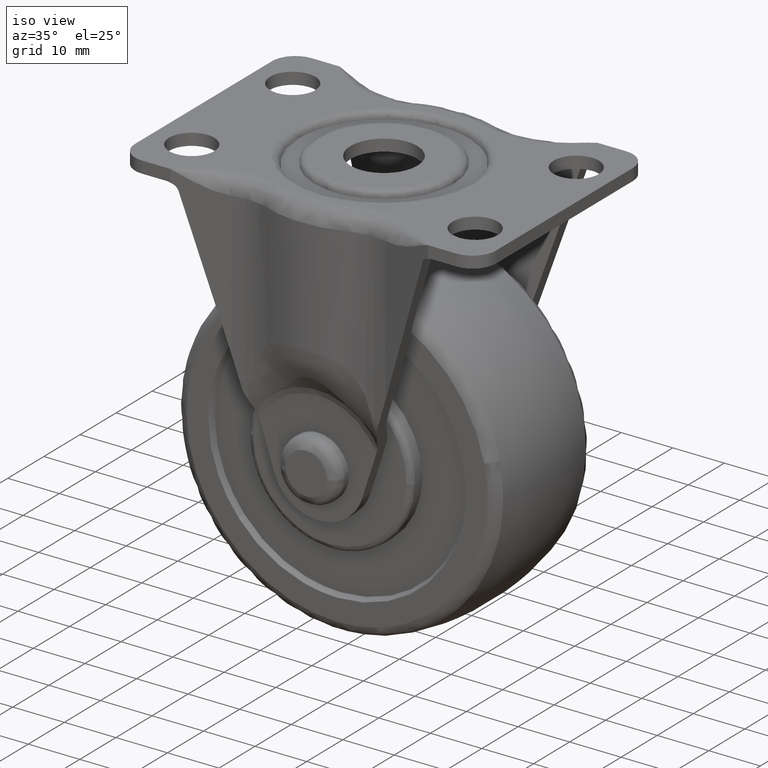
[diagram: clean part render]
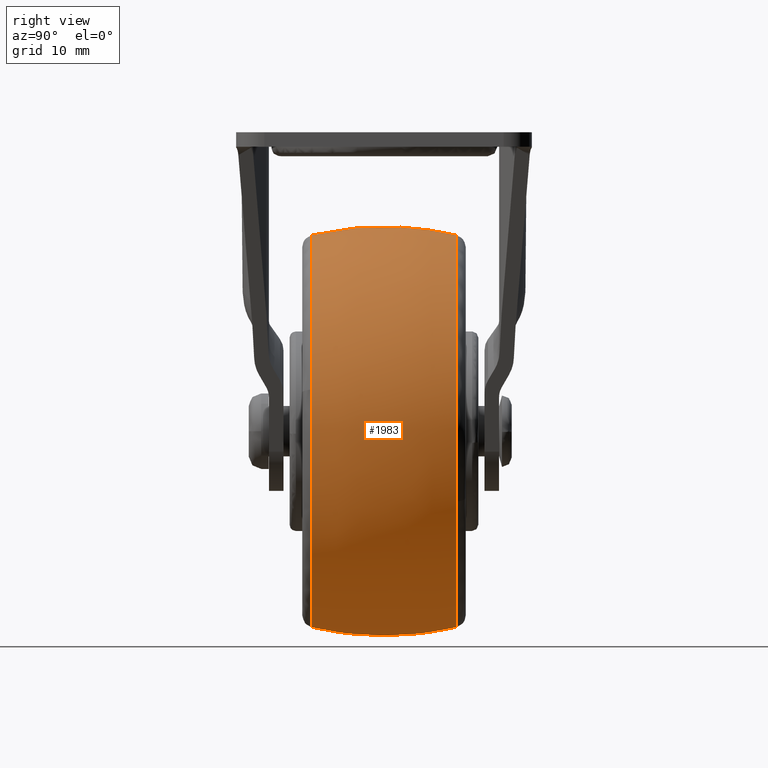
[diagram: tour spotlight — one face highlighted and labeled with its STEP entity id]
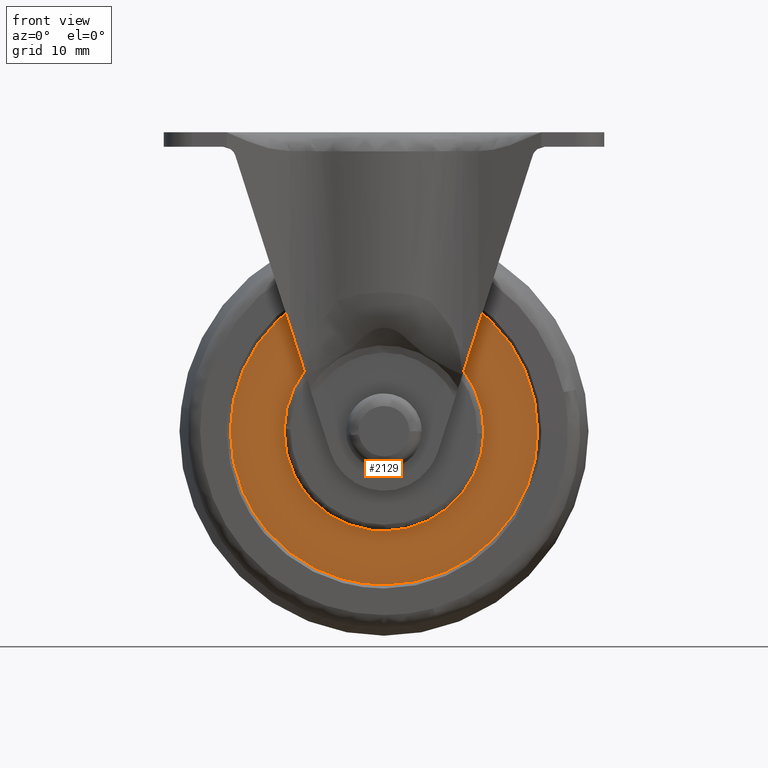
[diagram: tour spotlight — one face highlighted and labeled with its STEP entity id]
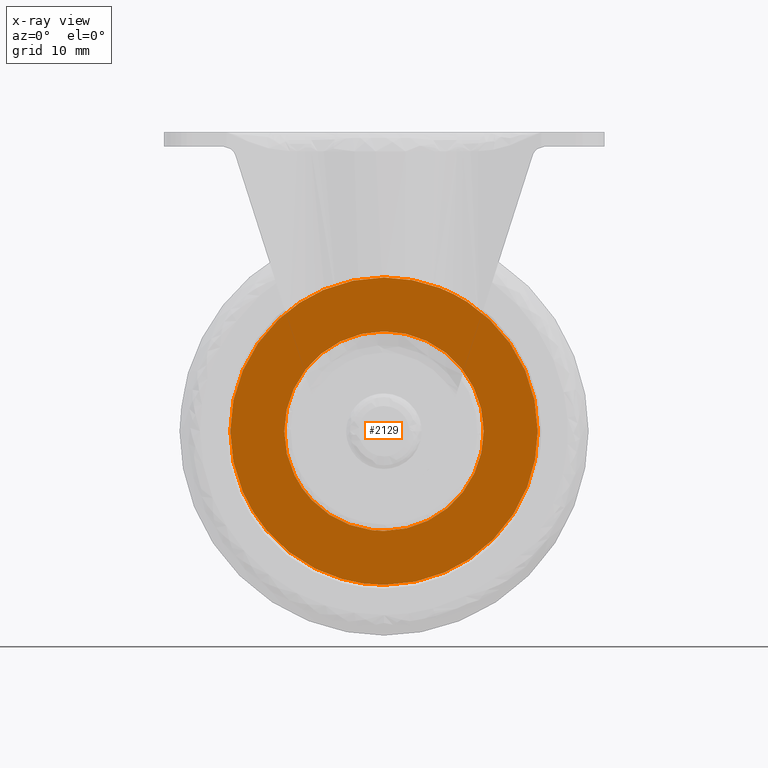
[diagram: x-ray of the same camera — body ghosted, this tour face saturated]
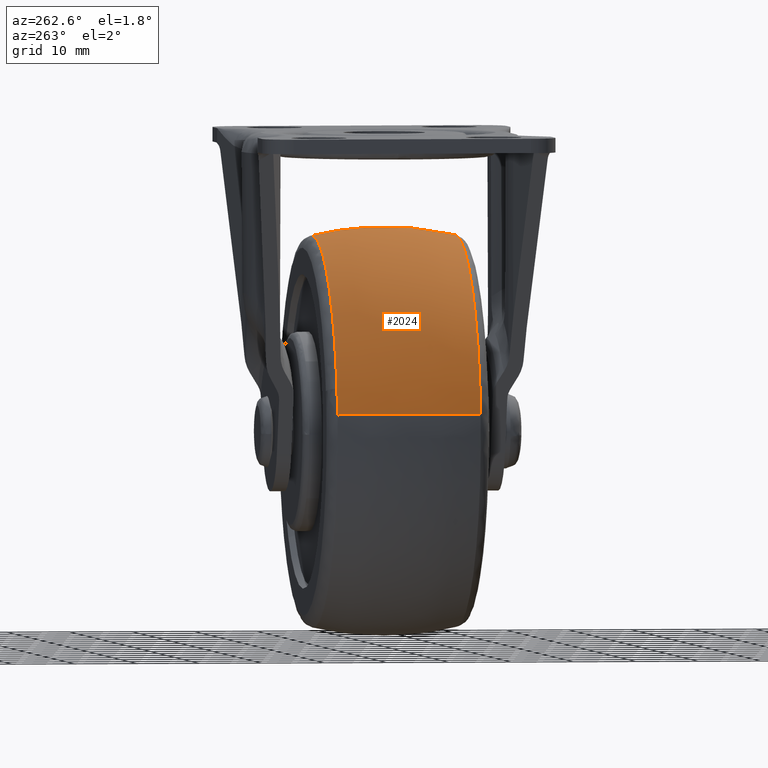
[diagram: tour spotlight — one face highlighted and labeled with its STEP entity id]
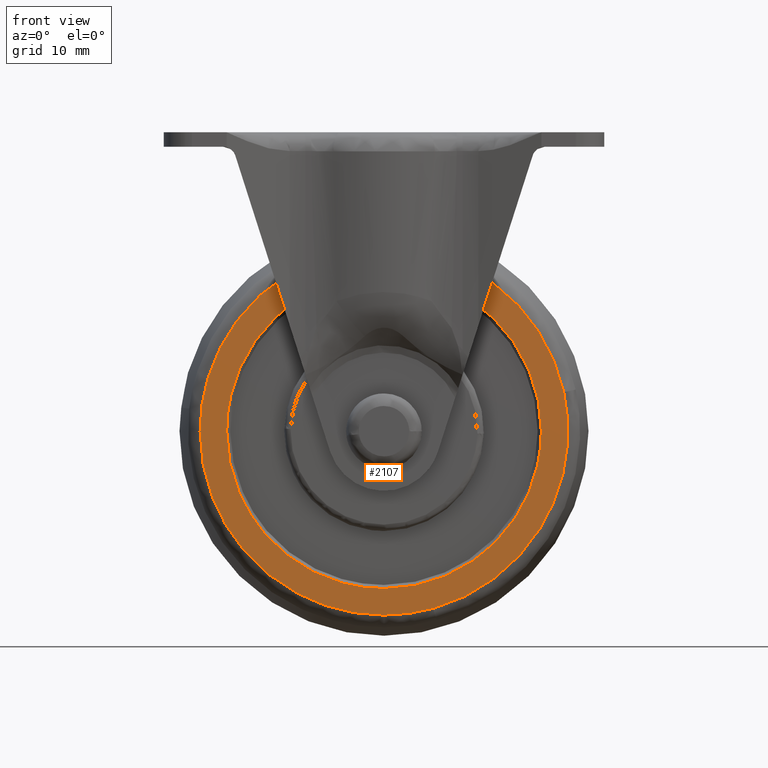
[diagram: tour spotlight — one face highlighted and labeled with its STEP entity id]
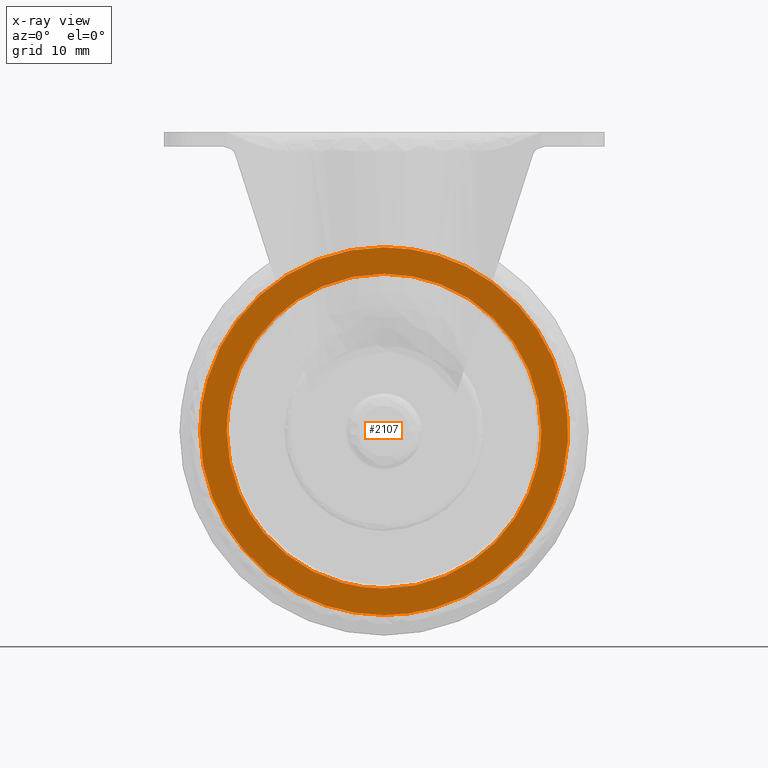
[diagram: x-ray of the same camera — body ghosted, this tour face saturated]
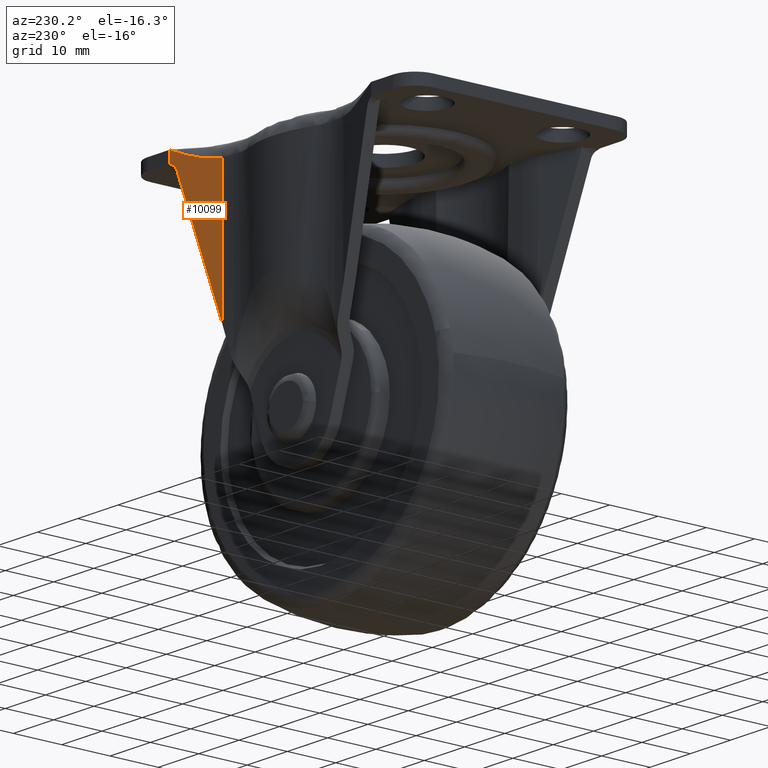
[diagram: tour spotlight — one face highlighted and labeled with its STEP entity id]
A machine part: a face-by-face anatomy tour. The part has 174 B-rep faces; the first image is the clean iso view, then the 5 largest visible faces are spotlighted one at a time (largest first), each with its STEP entity span.

Face 1 — right view, entity #1983. In plain terms, the highlighted face is a freeform B-spline surface patch.
Definition (entity closure, byte-faithful):
#1364=CARTESIAN_POINT('',(0.0,11.458332937572701,31.169360035773391));
#1365=VERTEX_POINT('',#1364);
#1380=CARTESIAN_POINT('',(29.093172507093531,11.458333520081990,-11.185538065268309));
#1381=VERTEX_POINT('',#1380);
#1382=CARTESIAN_POINT('',(29.093172507093531,11.458333520081990,-11.185538065268309));
#1383=CARTESIAN_POINT('',(29.685962858441250,11.458333542868081,-9.643986918233292));
#1384=CARTESIAN_POINT('',(30.648008929683531,11.458333583259670,-6.390727772732680));
#1385=CARTESIAN_POINT('',(31.326247697283652,11.458333625853850,-0.987566777631188));
#1386=CARTESIAN_POINT('',(31.034218535297441,11.458333641361250,4.141022359017217));
#1387=CARTESIAN_POINT('',(29.935316903379309,11.458333634445740,9.063814271240322));
#1388=CARTESIAN_POINT('',(28.448878794966340,11.458333612603781,12.972202334880871));
#1389=CARTESIAN_POINT('',(26.259647500496730,11.458333572507570,16.982466567898872));
#1390=CARTESIAN_POINT('',(23.150479300303552,11.458333508678020,21.161500459767218));
#1391=CARTESIAN_POINT('',(18.701964735421310,11.458333408574729,25.207521002987150));
#1392=CARTESIAN_POINT('',(13.464612984302789,11.458333283142370,28.301743545933359));
#1393=CARTESIAN_POINT('',(7.313792023346034,11.458333129590450,30.560834445576649));
#1394=CARTESIAN_POINT('',(2.752785124504729,11.458333010889300,31.170354142161610));
#1395=CARTESIAN_POINT('',(0.0,11.458332937572701,31.169360035773391));
#1396=B_SPLINE_CURVE_WITH_KNOTS('',3,(#1382,#1383,#1384,#1385,#1386,#1387,#1388,#1389,#1390,#1391,#1392,#1393,#1394,#1395),.UNSPECIFIED.,.F.,.U.,(4,1,1,1,1,1,1,1,1,1,1,4),(0.000000229770372,4.954798130012726,10.145535638811371,16.280121506511509,20.291189685613620,25.246042157817740,28.785175737634589,33.975849854384990,40.818233150470718,46.716847777052863,52.143545874056322,60.401565906026399),.UNSPECIFIED.);
#1397=EDGE_CURVE('',#1381,#1365,#1396,.T.);
#1451=CARTESIAN_POINT('',(0.0,11.458333692308800,-31.169359858084249));
#1452=VERTEX_POINT('',#1451);
#1453=CARTESIAN_POINT('',(0.0,11.458333692308800,-31.169359858084249));
#1454=CARTESIAN_POINT('',(1.661031798035533,11.458333692309260,-31.169413621249632));
#1455=CARTESIAN_POINT('',(5.569420188486874,11.458333689612139,-30.856460728220949));
#1456=CARTESIAN_POINT('',(10.687097814335580,11.458333677500949,-29.451174434579151));
#1457=CARTESIAN_POINT('',(14.935417559887821,11.458333660169700,-27.440201437893151));
#1458=CARTESIAN_POINT('',(18.252155230143490,11.458333642267251,-25.362930213383329));
#1459=CARTESIAN_POINT('',(21.522485098331028,11.458333619391841,-22.708665161897581));
#1460=CARTESIAN_POINT('',(24.359890721083069,11.458333592530151,-19.591840861025350));
#1461=CARTESIAN_POINT('',(27.038157354574061,11.458333559282829,-15.734090337861710));
#1462=CARTESIAN_POINT('',(28.392092794136762,11.458333535802540,-13.009624046275890));
#1463=CARTESIAN_POINT('',(29.093172507093531,11.458333520081990,-11.185538065268309));
#1464=B_SPLINE_CURVE_WITH_KNOTS('',3,(#1453,#1454,#1455,#1456,#1457,#1458,#1459,#1460,#1461,#1462,#1463),.UNSPECIFIED.,.F.,.U.,(4,1,1,1,1,1,1,1,4),(0.000000079452498,4.983141864944074,11.725047662135950,15.828861701065950,19.053161306219049,23.450059206301219,28.433239649027641,31.657652201441490,37.520148068174493),.UNSPECIFIED.);
#1465=EDGE_CURVE('',#1452,#1381,#1464,.T.);
#1467=CARTESIAN_POINT('',(-30.960887336973880,11.458347589749600,3.598922797563327));
#1468=VERTEX_POINT('',#1467);
#1469=CARTESIAN_POINT('',(-30.960887336973880,11.458347589749600,3.598922797563327));
#1470=CARTESIAN_POINT('',(-31.142741001151819,11.458347277240129,2.035183048548975));
#1471=CARTESIAN_POINT('',(-31.265961117802512,11.458346613614840,-1.051318203245586));
#1472=CARTESIAN_POINT('',(-30.687991478750980,11.458345312479420,-6.373046937045799));
#1473=CARTESIAN_POINT('',(-29.174720886936210,11.458343879317420,-11.454119380355131));
#1474=CARTESIAN_POINT('',(-26.809491668857628,11.458342373426190,-16.102764745734611));
#1475=CARTESIAN_POINT('',(-24.167619646392509,11.458341010284281,-19.864742343433239));
#1476=CARTESIAN_POINT('',(-21.044121332157260,11.458339658259190,-23.147969820337060));
#1477=CARTESIAN_POINT('',(-17.851323388258550,11.458338469642531,-25.636496556519390));
#1478=CARTESIAN_POINT('',(-14.632191371318919,11.458337393728470,-27.596030880639489));
#1479=CARTESIAN_POINT('',(-11.397085063313099,11.458336416523469,-29.098569620806071));
#1480=CARTESIAN_POINT('',(-6.433747461729930,11.458335077165660,-30.686614175202671));
#1481=CARTESIAN_POINT('',(-2.601094274496044,11.458334208502970,-31.170160178689951));
#1482=CARTESIAN_POINT('',(0.0,11.458333692308800,-31.169359858084249));
#1483=B_SPLINE_CURVE_WITH_KNOTS('',3,(#1469,#1470,#1471,#1472,#1473,#1474,#1475,#1476,#1477,#1478,#1479,#1480,#1481,#1482),.UNSPECIFIED.,.F.,.U.,(4,1,1,1,1,1,1,1,1,1,1,4),(0.000000182009437,4.722832643027623,9.240421908535112,16.016758111931519,20.534348796644078,24.846540083464529,29.774712067166170,34.086894471246460,36.961707157563822,41.068589599455088,44.764771290116030,52.567777121467188),.UNSPECIFIED.);
#1484=EDGE_CURVE('',#1468,#1452,#1483,.T.);
#1538=CARTESIAN_POINT('',(8.339410921737478,-11.458334047254681,-30.033034807135770));
#1539=VERTEX_POINT('',#1538);
#1540=CARTESIAN_POINT('',(30.460826968260040,-11.458332161546060,6.608100880899132));
#1541=VERTEX_POINT('',#1540);
#1542=CARTESIAN_POINT('',(8.339410921737478,-11.458334047254681,-30.033034807135770));
#1543=CARTESIAN_POINT('',(10.055931200155589,-11.458333983571990,-29.556538420101411));
#1544=CARTESIAN_POINT('',(13.638034962927710,-11.458333838800950,-28.222066191345789));
#1545=CARTESIAN_POINT('',(18.455912151728270,-11.458333605951751,-25.335114075955840));
#1546=CARTESIAN_POINT('',(22.754770088023221,-11.458333355639100,-21.540649585722100));
#1547=CARTESIAN_POINT('',(25.973540455189120,-11.458333125631860,-17.479956553296681));
#1548=CARTESIAN_POINT('',(28.428519441458299,-11.458332904259230,-13.067041355823060));
#1549=CARTESIAN_POINT('',(30.000222700830111,-11.458332714002291,-8.851975920192663));
#1550=CARTESIAN_POINT('',(31.075820552110851,-11.458332510111120,-3.857026446332759));
#1551=CARTESIAN_POINT('',(31.314147526456150,-11.458332324842250,1.261749992596616));
#1552=CARTESIAN_POINT('',(30.812489237837479,-11.458332208504110,4.987269294445119));
#1553=CARTESIAN_POINT('',(30.460826968260040,-11.458332161546060,6.608100880899132));
#1554=B_SPLINE_CURVE_WITH_KNOTS('',3,(#1542,#1543,#1544,#1545,#1546,#1547,#1548,#1549,#1550,#1551,#1552,#1553),.UNSPECIFIED.,.F.,.U.,(4,1,1,1,1,1,1,1,1,4),(0.000000131400249,5.344285666791699,11.425718842227640,16.770039375387110,22.482914695876651,26.905659390154401,31.881418622789109,35.935733726845463,42.201499036308370,47.177161544930613),.UNSPECIFIED.);
#1555=EDGE_CURVE('',#1539,#1541,#1554,.T.);
#1638=CARTESIAN_POINT('',(0.0,-11.458333336538320,-31.169359396949449));
#1639=VERTEX_POINT('',#1638);
#1640=CARTESIAN_POINT('',(0.0,-11.458333336538320,-31.169359396949449));
#1641=CARTESIAN_POINT('',(2.814130440411359,-11.458333336275020,-31.169780421244781));
#1642=CARTESIAN_POINT('',(5.628030381459679,-11.458333575890130,-30.786673086169898));
#1643=CARTESIAN_POINT('',(8.339410921737478,-11.458334047254681,-30.033034807135770));
#1644=B_SPLINE_CURVE_WITH_KNOTS('',3,(#1640,#1641,#1642,#1643),.UNSPECIFIED.,.F.,.U.,(4,4),(5.184404E-009,8.442279241378907),.UNSPECIFIED.);
#1645=EDGE_CURVE('',#1639,#1539,#1644,.T.);
#1706=CARTESIAN_POINT('',(0.0,-11.458331577675491,31.169359947265882));
#1707=VERTEX_POINT('',#1706);
#1708=CARTESIAN_POINT('',(30.460826968260040,-11.458332161546060,6.608100880899132));
#1709=CARTESIAN_POINT('',(29.994077019127001,-11.458332110358789,8.761358206001102));
#1710=CARTESIAN_POINT('',(28.983994526200320,-11.458332037861600,11.811045564899841));
#1711=CARTESIAN_POINT('',(26.821803752677251,-11.458331937525100,16.031827378413109));
#1712=CARTESIAN_POINT('',(24.220268085106358,-11.458331846202290,19.873438795778920));
#1713=CARTESIAN_POINT('',(21.059190856362239,-11.458331768752201,23.131474364837121));
#1714=CARTESIAN_POINT('',(17.305972540357860,-11.458331699883770,26.028514949284091));
#1715=CARTESIAN_POINT('',(13.776852919717721,-11.458331650711941,28.096984639413449));
#1716=CARTESIAN_POINT('',(9.258291300339725,-11.458331608257090,29.882908772690950));
#1717=CARTESIAN_POINT('',(4.736932100573088,-11.458331583322231,30.931819918748470));
#1718=CARTESIAN_POINT('',(1.542253208388154,-11.458331577673810,31.169434688912681));
#1719=CARTESIAN_POINT('',(0.0,-11.458331577675491,31.169359947265882));
#1720=B_SPLINE_CURVE_WITH_KNOTS('',3,(#1708,#1709,#1710,#1711,#1712,#1713,#1714,#1715,#1716,#1717,#1718,#1719),.UNSPECIFIED.,.F.,.U.,(4,1,1,1,1,1,1,1,1,4),(0.000000044448946,6.609699393149732,9.584108145195962,14.210926048051549,20.490188607394352,23.134003592904911,28.421823003075030,32.718176574287099,37.675504615882801,42.302282196595151),.UNSPECIFIED.);
#1721=EDGE_CURVE('',#1541,#1707,#1720,.T.);
#1723=CARTESIAN_POINT('',(-30.960887788978059,-11.458344489675630,3.598922870577073));
#1724=VERTEX_POINT('',#1723);
#1739=CARTESIAN_POINT('',(-30.960887788978059,-11.458344489675630,3.598922870577073));
#1740=CARTESIAN_POINT('',(-31.269936326834490,-11.458344064510730,0.947324563657963));
#1741=CARTESIAN_POINT('',(-31.221211875571878,-11.458343390074409,-2.778942572616157));
#1742=CARTESIAN_POINT('',(-30.169367211212609,-11.458342247330680,-8.229470593203578));
#1743=CARTESIAN_POINT('',(-28.682001005651561,-11.458341230794570,-12.586751572245170));
#1744=CARTESIAN_POINT('',(-25.947875620444140,-11.458339900286720,-17.588699651725101));
#1745=CARTESIAN_POINT('',(-22.249134390506001,-11.458338500482320,-22.118986456722979));
#1746=CARTESIAN_POINT('',(-18.319663899241029,-11.458337296091630,-25.351576324543650));
#1747=CARTESIAN_POINT('',(-14.632166166694470,-11.458336307049571,-27.595983671851702));
#1748=CARTESIAN_POINT('',(-10.837224305238809,-11.458335387051720,-29.358800862994819));
#1749=CARTESIAN_POINT('',(-5.817960929521735,-11.458334329188039,-30.801948998408641));
#1750=CARTESIAN_POINT('',(-1.984992908647913,-11.458333652743629,-31.169600554861631));
#1751=CARTESIAN_POINT('',(0.0,-11.458333336538320,-31.169359396949449));
#1752=B_SPLINE_CURVE_WITH_KNOTS('',3,(#1739,#1740,#1741,#1742,#1743,#1744,#1745,#1746,#1747,#1748,#1749,#1750,#1751),.UNSPECIFIED.,.F.,.U.,(4,1,1,1,1,1,1,1,1,1,4),(0.000000182040822,8.008330706845918,11.088510386367300,16.632802529028091,21.766349570607581,28.131895421878710,34.086894370772590,36.961707048612929,41.068589478394401,46.612839564652717,52.567776966501640),.UNSPECIFIED.);
#1753=EDGE_CURVE('',#1724,#1639,#1752,.T.);
#1903=CARTESIAN_POINT('',(-30.676606947715467,-12.612271061733603,3.565900045393533));
#1904=CARTESIAN_POINT('',(-32.282628353075232,-6.409770975767172,3.752586656857315));
#1905=CARTESIAN_POINT('',(-32.282628353075225,-3.214592E-015,3.752586656857316));
#1906=CARTESIAN_POINT('',(-32.282628353075225,6.409772813824291,3.752586656857316));
#1907=CARTESIAN_POINT('',(-30.676606041526728,12.612274561459639,3.565899940056639));
#1908=CARTESIAN_POINT('',(-30.883164620199832,-12.612271061733605,1.788932533636364));
#1909=CARTESIAN_POINT('',(-32.500000000000000,-6.409770975767171,1.882589043519000));
#1910=CARTESIAN_POINT('',(-32.500000000000000,-3.214592E-015,1.882589043519000));
#1911=CARTESIAN_POINT('',(-32.500000000000000,6.409772813824286,1.882589043519000));
#1912=CARTESIAN_POINT('',(-30.883163707909368,12.612274561459639,1.788932480791193));
#1913=CARTESIAN_POINT('',(-30.883164620199835,-12.612271061733606,0.0));
#1914=CARTESIAN_POINT('',(-32.499999999999993,-6.409770975767171,0.0));
#1915=CARTESIAN_POINT('',(-32.500000000000000,-3.214592E-015,0.0));
#1916=CARTESIAN_POINT('',(-32.500000000000000,6.409772813824289,0.0));
#1917=CARTESIAN_POINT('',(-30.883163707909368,12.612274561459637,0.0));
#1918=CARTESIAN_POINT('',(-30.883164620199835,-12.612271061733606,-30.883164620199835));
#1919=CARTESIAN_POINT('',(-32.500000000000000,-6.409770975767172,-32.500000000000000));
#1920=CARTESIAN_POINT('',(-32.500000000000007,-3.214592E-015,-32.500000000000007));
#1921=CARTESIAN_POINT('',(-32.499999999999993,6.409772813824290,-32.499999999999993));
#1922=CARTESIAN_POINT('',(-30.883163707909372,12.612274561459643,-30.883163707909372));
#1923=CARTESIAN_POINT('',(0.0,-12.612271061733606,-30.883164620199835));
#1924=CARTESIAN_POINT('',(0.0,-6.409770975767171,-32.499999999999993));
#1925=CARTESIAN_POINT('',(0.0,-3.214592E-015,-32.500000000000000));
#1926=CARTESIAN_POINT('',(0.0,6.409772813824289,-32.500000000000000));
#1927=CARTESIAN_POINT('',(0.0,12.612274561459637,-30.883163707909368));
#1928=CARTESIAN_POINT('',(30.883164620199835,-12.612271061733606,-30.883164620199835));
#1929=CARTESIAN_POINT('',(32.500000000000000,-6.409770975767172,-32.500000000000000));
#1930=CARTESIAN_POINT('',(32.500000000000007,-3.214592E-015,-32.500000000000007));
#1931=CARTESIAN_POINT('',(32.499999999999993,6.409772813824290,-32.499999999999993));
#1932=CARTESIAN_POINT('',(30.883163707909372,12.612274561459643,-30.883163707909372));
#1933=CARTESIAN_POINT('',(30.883164620199835,-12.612271061733606,0.0));
#1934=CARTESIAN_POINT('',(32.499999999999993,-6.409770975767171,0.0));
#1935=CARTESIAN_POINT('',(32.500000000000000,-3.214592E-015,0.0));
#1936=CARTESIAN_POINT('',(32.500000000000000,6.409772813824289,0.0));
#1937=CARTESIAN_POINT('',(30.883163707909368,12.612274561459637,0.0));
#1938=CARTESIAN_POINT('',(30.883164620199835,-12.612271061733606,30.883164620199835));
#1939=CARTESIAN_POINT('',(32.500000000000000,-6.409770975767172,32.500000000000000));
#1940=CARTESIAN_POINT('',(32.500000000000007,-3.214592E-015,32.500000000000007));
#1941=CARTESIAN_POINT('',(32.499999999999993,6.409772813824290,32.499999999999993));
#1942=CARTESIAN_POINT('',(30.883163707909372,12.612274561459643,30.883163707909372));
#1943=CARTESIAN_POINT('',(0.0,-12.612271061733606,30.883164620199835));
#1944=CARTESIAN_POINT('',(0.0,-6.409770975767171,32.499999999999993));
#1945=CARTESIAN_POINT('',(0.0,-3.214592E-015,32.500000000000000));
#1946=CARTESIAN_POINT('',(0.0,6.409772813824289,32.500000000000000));
#1947=CARTESIAN_POINT('',(0.0,12.612274561459637,30.883163707909368));
#1955=(BOUNDED_SURFACE()B_SPLINE_SURFACE(2,2,((#1903,#1908,#1913,#1918,#1923,#1928,#1933,#1938,#1943),(#1904,#1909,#1914,#1919,#1924,#1929,#1934,#1939,#1944),(#1905,#1910,#1915,#1920,#1925,#1930,#1935,#1940,#1945),(#1906,#1911,#1916,#1921,#1926,#1931,#1936,#1941,#1946),(#1907,#1912,#1917,#1922,#1927,#1932,#1937,#1942,#1947)),.UNSPECIFIED.,.F.,.F.,.U.)B_SPLINE_SURFACE_WITH_KNOTS((3,2,3),(3,2,2,2,3),(0.0,13.118280322433749,26.236564261545031),(0.0,4.307820149998688,58.155583258501053,112.003346367003400,165.851109475505810),.UNSPECIFIED.)GEOMETRIC_REPRESENTATION_ITEM()RATIONAL_B_SPLINE_SURFACE(((0.899026014747760,0.917518297169104,0.939532918224492,0.664350097624524,0.939532918224492,0.664350097624524,0.939532918224492,0.664350097624524,0.939532918224492),(0.919976327677525,0.938899542126594,0.961427177480317,0.679831676813375,0.961427177480317,0.679831676813375,0.961427177480317,0.679831676813375,0.961427177480317),(0.956886126402807,0.976568547383107,1.0,0.707106781186548,1.0,0.707106781186548,1.0,0.707106781186548,1.0),(0.919976317501585,0.938899531741342,0.961427166845885,0.679831669293696,0.961427166845885,0.679831669293696,0.961427166845885,0.679831669293696,0.961427166845885),(0.899026003195862,0.917518285379592,0.939532906152107,0.664350089088059,0.939532906152107,0.664350089088059,0.939532906152107,0.664350089088059,0.939532906152107)))REPRESENTATION_ITEM('')SURFACE());
#1956=ORIENTED_EDGE('',*,*,#1484,.T.);
#1957=ORIENTED_EDGE('',*,*,#1465,.T.);
#1958=ORIENTED_EDGE('',*,*,#1397,.T.);
#1959=CARTESIAN_POINT('',(0.0,-11.458331577675491,31.169359947265882));
#1960=CARTESIAN_POINT('',(0.0,-8.996675269607593,31.749065272665650));
#1961=CARTESIAN_POINT('',(0.0,-4.104516942717155,32.515017539026658));
#1962=CARTESIAN_POINT('',(0.0,3.622807716456403,32.570907540381697));
#1963=CARTESIAN_POINT('',(0.0,8.762238175156128,31.804325753622368));
#1964=CARTESIAN_POINT('',(0.0,11.458332937572701,31.169360035773391));
#1965=B_SPLINE_CURVE_WITH_KNOTS('',3,(#1959,#1960,#1961,#1962,#1963,#1964),.UNSPECIFIED.,.F.,.U.,(4,1,1,4),(0.000000010432490,7.586972723426124,14.812646244554241,23.122196095847869),.UNSPECIFIED.);
#1966=EDGE_CURVE('',#1707,#1365,#1965,.T.);
#1967=ORIENTED_EDGE('',*,*,#1966,.F.);
#1968=ORIENTED_EDGE('',*,*,#1721,.F.);
#1969=ORIENTED_EDGE('',*,*,#1555,.F.);
#1970=ORIENTED_EDGE('',*,*,#1645,.F.);
#1971=ORIENTED_EDGE('',*,*,#1753,.F.);
#1972=CARTESIAN_POINT('',(-30.960887788978059,-11.458344489675630,3.598922870577073));
#1973=CARTESIAN_POINT('',(-31.536680493463120,-8.996683135848322,3.665853988763190));
#1974=CARTESIAN_POINT('',(-32.334776727024192,-3.865876428712874,3.758626043761824));
#1975=CARTESIAN_POINT('',(-32.334728181743422,3.865877136825594,3.758620393869109));
#1976=CARTESIAN_POINT('',(-31.536703855881509,8.996688461727599,3.665856688376425));
#1977=CARTESIAN_POINT('',(-30.960887336973880,11.458347589749600,3.598922797563327));
#1978=B_SPLINE_CURVE_WITH_KNOTS('',3,(#1972,#1973,#1974,#1975,#1976,#1977),.UNSPECIFIED.,.F.,.U.,(4,1,1,4),(0.000000010431986,7.586981996074677,15.535242369685740,23.122224355328498),.UNSPECIFIED.);
#1979=EDGE_CURVE('',#1724,#1468,#1978,.T.);
#1980=ORIENTED_EDGE('',*,*,#1979,.T.);
#1981=EDGE_LOOP('',(#1956,#1957,#1958,#1967,#1968,#1969,#1970,#1971,#1980));
#1982=FACE_OUTER_BOUND('',#1981,.T.);
#1983=ADVANCED_FACE('',(#1982),#1955,.T.);

Face 2 — front view, entity #2129. An x-ray twin of the same camera follows (body ghosted, this face saturated) — the face is partly hidden behind the body. In plain terms, the highlighted face is a freeform B-spline surface patch.
Definition (entity closure, byte-faithful):
#772=CARTESIAN_POINT('',(-16.811442488980550,-11.999999892257920,17.715563972191770));
#773=VERTEX_POINT('',#772);
#779=CARTESIAN_POINT('',(0.0,-12.0,24.422649745783300));
#780=VERTEX_POINT('',#779);
#781=CARTESIAN_POINT('',(0.0,-12.0,24.422649745783300));
#782=CARTESIAN_POINT('',(-2.221299314178077,-11.999999985764010,24.423408924376819));
#783=CARTESIAN_POINT('',(-5.600902473578113,-11.999999964104720,23.958252555334621));
#784=CARTESIAN_POINT('',(-9.884708708906555,-11.999999936650250,22.423190984456252));
#785=CARTESIAN_POINT('',(-13.393933017821510,-11.999999914160240,20.567772967975738));
#786=CARTESIAN_POINT('',(-15.620714684720751,-11.999999899889170,18.845865993638728));
#787=CARTESIAN_POINT('',(-16.811442488980550,-11.999999892257920,17.715563972191770));
#788=B_SPLINE_CURVE_WITH_KNOTS('',3,(#781,#782,#783,#784,#785,#786,#787),.UNSPECIFIED.,.F.,.U.,(4,1,1,1,4),(0.000000021748658,6.663634115366412,10.140259599529450,13.616949213031329,18.542229379605171),.UNSPECIFIED.);
#789=EDGE_CURVE('',#780,#773,#788,.T.);
#791=CARTESIAN_POINT('',(24.422649745783279,-12.0,0.000000996643837));
#792=VERTEX_POINT('',#791);
#793=CARTESIAN_POINT('',(24.422649745783279,-12.0,0.000000996643837));
#794=CARTESIAN_POINT('',(24.422898087844381,-12.000000000000011,1.698364839193726));
#795=CARTESIAN_POINT('',(24.098268574053758,-11.999999999999980,4.795281829760167));
#796=CARTESIAN_POINT('',(22.701234833931441,-12.000000000000041,9.401224431686051));
#797=CARTESIAN_POINT('',(20.688492685716859,-11.999999999999940,13.222847378763850));
#798=CARTESIAN_POINT('',(17.915048107904340,-12.000000000000069,16.776599388553919));
#799=CARTESIAN_POINT('',(14.493688442679030,-11.999999999999940,19.877869867093320));
#800=CARTESIAN_POINT('',(10.498949700094780,-12.0,22.205980299399311));
#801=CARTESIAN_POINT('',(5.594201396211602,-12.000000000000121,23.960797053373650));
#802=CARTESIAN_POINT('',(2.197986126495999,-11.999999999999851,24.423400456771930));
#803=CARTESIAN_POINT('',(0.0,-12.0,24.422649745783300));
#804=B_SPLINE_CURVE_WITH_KNOTS('',3,(#793,#794,#795,#796,#797,#798,#799,#800,#801,#802,#803),.UNSPECIFIED.,.F.,.U.,(4,1,1,1,1,1,1,1,4),(0.000000045579363,5.095089349435781,9.291096656380429,14.386268324352770,17.982802023161071,22.778117848199170,28.173004368852329,31.769574803451331,38.363248661141739),.UNSPECIFIED.);
#805=EDGE_CURVE('',#792,#780,#804,.T.);
#807=CARTESIAN_POINT('',(0.0,-12.0,-24.422649745783300));
#808=VERTEX_POINT('',#807);
#809=CARTESIAN_POINT('',(0.0,-12.0,-24.422649745783300));
#810=CARTESIAN_POINT('',(1.498552882153383,-12.000000000000011,-24.422804279704440));
#811=CARTESIAN_POINT('',(3.996071188800675,-11.999999999999989,-24.192009050576520));
#812=CARTESIAN_POINT('',(7.588503426901548,-12.000000000000011,-23.292170263825440));
#813=CARTESIAN_POINT('',(10.471915458643220,-12.000000000000011,-22.139048823440689));
#814=CARTESIAN_POINT('',(13.529523123341621,-11.999999999999851,-20.431697232726769));
#815=CARTESIAN_POINT('',(16.003306890422440,-12.000000000000369,-18.549509751459979));
#816=CARTESIAN_POINT('',(18.408013973677448,-11.999999999999590,-16.144737481493149));
#817=CARTESIAN_POINT('',(20.133648193295770,-12.000000000000441,-13.933530247006560));
#818=CARTESIAN_POINT('',(21.984994571348189,-11.999999999999490,-10.844985118095259));
#819=CARTESIAN_POINT('',(23.291167811137019,-12.000000000000281,-7.691695664931647));
#820=CARTESIAN_POINT('',(24.216063482981252,-11.999999999999959,-3.796268335451509));
#821=CARTESIAN_POINT('',(24.422770638055500,-11.999999999999870,-1.398639945074585));
#822=CARTESIAN_POINT('',(24.422649745783279,-12.0,0.000000996643837));
#823=B_SPLINE_CURVE_WITH_KNOTS('',3,(#809,#810,#811,#812,#813,#814,#815,#816,#817,#818,#819,#820,#821,#822),.UNSPECIFIED.,.F.,.U.,(4,1,1,1,1,1,1,1,1,1,1,4),(0.000000045236263,4.495649799188115,7.492807249786551,11.089384625941721,13.786833424249471,17.982802548826552,20.380443627909070,23.976982617169259,26.374730478467509,31.170144212697490,34.167326189610449,38.363249784598672),.UNSPECIFIED.);
#824=EDGE_CURVE('',#808,#792,#823,.T.);
#826=CARTESIAN_POINT('',(-18.648052263461089,-12.000000106392420,-15.770731827858050));
#827=VERTEX_POINT('',#826);
#828=CARTESIAN_POINT('',(-18.648052263461089,-12.000000106392420,-15.770731827858050));
#829=CARTESIAN_POINT('',(-17.328266482549701,-12.000000098862680,-17.332272675592360));
#830=CARTESIAN_POINT('',(-15.195383994522571,-12.000000086693991,-19.291189654978272));
#831=CARTESIAN_POINT('',(-11.834525554117739,-12.000000067519320,-21.429876436400711));
#832=CARTESIAN_POINT('',(-9.138941558459376,-12.000000052140249,-22.725307048936610));
#833=CARTESIAN_POINT('',(-5.138604086615054,-12.000000029317210,-24.031662951752530));
#834=CARTESIAN_POINT('',(-2.044563455027437,-12.000000011664770,-24.423284046229789));
#835=CARTESIAN_POINT('',(0.0,-12.0,-24.422649745783300));
#836=B_SPLINE_CURVE_WITH_KNOTS('',3,(#828,#829,#830,#831,#832,#833,#834,#835),.UNSPECIFIED.,.F.,.U.,(4,1,1,1,1,4),(0.000000051726836,6.133474054458134,8.620039357540207,11.935362472585030,15.085004592743740,21.218478595465509),.UNSPECIFIED.);
#837=EDGE_CURVE('',#827,#808,#836,.T.);
#874=CARTESIAN_POINT('',(-24.422649745783279,-12.0,-0.000000996644590));
#875=VERTEX_POINT('',#874);
#876=CARTESIAN_POINT('',(-24.422649745783279,-12.0,-0.000000996644590));
#877=CARTESIAN_POINT('',(-24.423460605903308,-12.000000015060760,-2.232482930374154));
#878=CARTESIAN_POINT('',(-23.941627754877420,-12.000000038550731,-5.714442124364541));
#879=CARTESIAN_POINT('',(-21.970803683193552,-12.000000074861161,-11.096792722255220));
#880=CARTESIAN_POINT('',(-20.090340102085850,-12.000000094896579,-14.066684049192551));
#881=CARTESIAN_POINT('',(-18.648052263461089,-12.000000106392420,-15.770731827858050));
#882=B_SPLINE_CURVE_WITH_KNOTS('',3,(#876,#877,#878,#879,#880,#881),.UNSPECIFIED.,.F.,.U.,(4,1,1,4),(0.000000033491382,6.697139081644519,10.447516783959800,17.144655832106810),.UNSPECIFIED.);
#883=EDGE_CURVE('',#875,#827,#882,.T.);
#885=CARTESIAN_POINT('',(-16.811442488980550,-11.999999892257920,17.715563972191770));
#886=CARTESIAN_POINT('',(-18.309579005179430,-11.999999900899081,16.294734520464260));
#887=CARTESIAN_POINT('',(-20.415019042280711,-11.999999916589889,13.714765130038840));
#888=CARTESIAN_POINT('',(-22.334114739691021,-11.999999938909040,10.044921431898430));
#889=CARTESIAN_POINT('',(-23.448128693953869,-11.999999957181670,7.040435299936606));
#890=CARTESIAN_POINT('',(-24.217915223857389,-11.999999976769830,3.819621519240240));
#891=CARTESIAN_POINT('',(-24.422741953233700,-11.999999991837990,1.342045093977735));
#892=CARTESIAN_POINT('',(-24.422649745783279,-12.0,-0.000000996644590));
#893=B_SPLINE_CURVE_WITH_KNOTS('',3,(#885,#886,#887,#888,#889,#890,#891,#892),.UNSPECIFIED.,.F.,.U.,(4,1,1,1,1,4),(0.000000012326037,6.194073901170974,9.910510684001675,12.388136370926480,15.794876807086350,19.821021397630950),.UNSPECIFIED.);
#894=EDGE_CURVE('',#773,#875,#893,.T.);
#937=CARTESIAN_POINT('',(-1.984105900038415,-12.000000000000050,-15.725322290566730));
#938=VERTEX_POINT('',#937);
#939=CARTESIAN_POINT('',(0.0,-12.0,-15.849998000000051));
#940=VERTEX_POINT('',#939);
#941=CARTESIAN_POINT('',(-1.984105900038415,-12.000000000000050,-15.725322290566730));
#942=CARTESIAN_POINT('',(-1.326220813603907,-12.000000000000041,-15.808338110539260));
#943=CARTESIAN_POINT('',(-0.663098625214880,-12.000000000000020,-15.850019876117230));
#944=CARTESIAN_POINT('',(0.0,-12.0,-15.849998000000051));
#945=B_SPLINE_CURVE_WITH_KNOTS('',3,(#941,#942,#943,#944),.UNSPECIFIED.,.F.,.U.,(4,4),(1.883050E-009,1.989345032730193),.UNSPECIFIED.);
#946=EDGE_CURVE('',#938,#940,#945,.T.);
#948=CARTESIAN_POINT('',(15.849997999999999,-12.0,0.000001249693575));
#949=VERTEX_POINT('',#948);
#950=CARTESIAN_POINT('',(0.0,-12.0,-15.849998000000051));
#951=CARTESIAN_POINT('',(0.972531705315258,-12.000000000000011,-15.850091903942671));
#952=CARTESIAN_POINT('',(2.917585155309613,-11.999999999999970,-15.670437311748890));
#953=CARTESIAN_POINT('',(5.673990466468891,-12.000000000000091,-14.889450019156421));
#954=CARTESIAN_POINT('',(8.481242708466057,-11.999999999999890,-13.519421024469160));
#955=CARTESIAN_POINT('',(10.911483923034741,-12.000000000000201,-11.646818090558099));
#956=CARTESIAN_POINT('',(12.866545194918190,-11.999999999999631,-9.379909872083571));
#957=CARTESIAN_POINT('',(14.454492781235730,-12.000000000000620,-6.767642305592172));
#958=CARTESIAN_POINT('',(15.576836305348490,-11.999999999999391,-3.630824762517606));
#959=CARTESIAN_POINT('',(15.850166169493090,-12.000000000000490,-1.167045383064508));
#960=CARTESIAN_POINT('',(15.849997999999999,-12.0,0.000001249693575));
#961=B_SPLINE_CURVE_WITH_KNOTS('',3,(#950,#951,#952,#953,#954,#955,#956,#957,#958,#959,#960),.UNSPECIFIED.,.F.,.U.,(4,1,1,1,1,1,1,1,4),(0.000000216229267,2.917596252722984,5.835297553974037,8.558476639787227,12.254191159672031,14.977250525799500,17.505893735843610,21.396114142258991,24.897275561318349),.UNSPECIFIED.);
#962=EDGE_CURVE('',#940,#949,#961,.T.);
#964=CARTESIAN_POINT('',(0.0,-12.0,15.849998000000051));
#965=VERTEX_POINT('',#964);
#966=CARTESIAN_POINT('',(15.849997999999999,-12.0,0.000001249693575));
#967=CARTESIAN_POINT('',(15.850088308442549,-12.000000000000011,0.972530225099369));
#968=CARTESIAN_POINT('',(15.670398158646391,-12.0,2.917567485737418));
#969=CARTESIAN_POINT('',(14.765478343462270,-11.999999999999980,6.112656055102504));
#970=CARTESIAN_POINT('',(13.331607278678250,-12.000000000000069,8.756085256071870));
#971=CARTESIAN_POINT('',(11.641692269947100,-11.999999999999901,10.814594053004569));
#972=CARTESIAN_POINT('',(9.807080956843995,-12.000000000000050,12.561682244096470));
#973=CARTESIAN_POINT('',(7.572745452502257,-12.000000000000050,14.034908432250511));
#974=CARTESIAN_POINT('',(5.109945829522776,-11.999999999999920,15.054722074123671));
#975=CARTESIAN_POINT('',(2.723052766374064,-12.000000000000091,15.683855585742000));
#976=CARTESIAN_POINT('',(1.037378941939170,-11.999999999999950,15.850153582611391));
#977=CARTESIAN_POINT('',(0.0,-12.0,15.849998000000051));
#978=B_SPLINE_CURVE_WITH_KNOTS('',3,(#966,#967,#968,#969,#970,#971,#972,#973,#974,#975,#976,#977),.UNSPECIFIED.,.F.,.U.,(4,1,1,1,1,1,1,1,1,4),(0.000000216663395,2.917596088011766,5.835297224190388,9.920028346565948,11.865187506598559,13.810129991138400,17.505892745850609,19.840018584732679,21.785162208070471,24.897274152613580),.UNSPECIFIED.);
#979=EDGE_CURVE('',#949,#965,#978,.T.);
#981=CARTESIAN_POINT('',(-15.849997999999999,-12.0,-0.000001249693273));
#982=VERTEX_POINT('',#981);
#983=CARTESIAN_POINT('',(0.0,-12.0,15.849998000000051));
#984=CARTESIAN_POINT('',(-0.972529898220346,-11.999999999999980,15.850089304046319));
#985=CARTESIAN_POINT('',(-2.917588859297923,-12.000000000000020,15.670439547670570));
#986=CARTESIAN_POINT('',(-5.861960556928390,-11.999999999999980,14.836274763108809));
#987=CARTESIAN_POINT('',(-8.532186887763920,-12.000000000000041,13.471544648727050));
#988=CARTESIAN_POINT('',(-10.943394522781460,-12.000000000000011,11.589787323597490));
#989=CARTESIAN_POINT('',(-12.799093552964450,-11.999999999999780,9.491144389582564));
#990=CARTESIAN_POINT('',(-14.116403927267431,-12.000000000000320,7.323365383182430));
#991=CARTESIAN_POINT('',(-15.089037975860849,-11.999999999999710,5.054613777790316));
#992=CARTESIAN_POINT('',(-15.704884453681339,-12.000000000000300,2.658274912301547));
#993=CARTESIAN_POINT('',(-15.850051400946910,-11.999999999999860,0.842864206945780));
#994=CARTESIAN_POINT('',(-15.849997999999999,-12.0,-0.000001249693273));
#995=B_SPLINE_CURVE_WITH_KNOTS('',3,(#983,#984,#985,#986,#987,#988,#989,#990,#991,#992,#993,#994),.UNSPECIFIED.,.F.,.U.,(4,1,1,1,1,1,1,1,1,4),(0.000000216236486,2.917596252729492,5.835297553979803,9.141993609242231,11.865188178034501,14.977250525802679,17.505893735845891,19.451009501395170,22.368662918213019,24.897275561318111),.UNSPECIFIED.);
#996=EDGE_CURVE('',#965,#982,#995,.T.);
#998=CARTESIAN_POINT('',(-11.497182468356691,-12.000000000000011,-10.910418955272160));
#999=VERTEX_POINT('',#998);
#1000=CARTESIAN_POINT('',(-15.849997999999999,-12.0,-0.000001249693273));
#1001=CARTESIAN_POINT('',(-15.850083089219480,-12.0,-0.940131767697552));
#1002=CARTESIAN_POINT('',(-15.693385795365611,-12.000000000000030,-2.694992345768237));
#1003=CARTESIAN_POINT('',(-14.948158605964119,-12.0,-5.553998316027995));
#1004=CARTESIAN_POINT('',(-13.618199999555690,-12.0,-8.343783365790248));
#1005=CARTESIAN_POINT('',(-12.230689775830861,-12.000000000000011,-10.137629665141100));
#1006=CARTESIAN_POINT('',(-11.497182468356691,-12.000000000000011,-10.910418955272160));
#1007=B_SPLINE_CURVE_WITH_KNOTS('',3,(#1000,#1001,#1002,#1003,#1004,#1005,#1006),.UNSPECIFIED.,.F.,.U.,(4,1,1,1,4),(0.000000054313112,2.820391313440377,5.264735322651177,8.837229733330849,12.033676894094040),.UNSPECIFIED.);
#1008=EDGE_CURVE('',#982,#999,#1007,.T.);
#1110=CARTESIAN_POINT('',(-11.497182468356691,-12.000000000000011,-10.910418955272160));
#1111=CARTESIAN_POINT('',(-10.912419984599060,-12.000000000000011,-11.526675676365040));
#1112=CARTESIAN_POINT('',(-9.432081182275066,-12.000000000000041,-12.854657437425590));
#1113=CARTESIAN_POINT('',(-6.312081168784173,-12.000000000000011,-14.740412667675731));
#1114=CARTESIAN_POINT('',(-3.613849769442612,-12.000000000000050,-15.520564317104860));
#1115=CARTESIAN_POINT('',(-1.984105900038415,-12.000000000000050,-15.725322290566730));
#1116=B_SPLINE_CURVE_WITH_KNOTS('',3,(#1110,#1111,#1112,#1113,#1114,#1115),.UNSPECIFIED.,.F.,.U.,(4,1,1,4),(0.000000043738847,2.548647892202732,5.946840851339394,10.874238716775499),.UNSPECIFIED.);
#1117=EDGE_CURVE('',#999,#938,#1116,.T.);
#2108=CARTESIAN_POINT('',(-26.862472360715358,-12.0,26.862472360715380));
#2109=CARTESIAN_POINT('',(-26.862472360715369,-12.0,-26.862473670848409));
#2110=CARTESIAN_POINT('',(26.862473670848381,-12.0,26.862472360715380));
#2111=CARTESIAN_POINT('',(26.862473670848381,-12.0,-26.862473670848409));
#2112=B_SPLINE_SURFACE_WITH_KNOTS('',1,1,((#2108,#2110),(#2109,#2111)),.UNSPECIFIED.,.F.,.F.,.U.,(2,2),(2,2),(0.0,53.724946031563789),(0.0,53.724946031563753),.UNSPECIFIED.);
#2113=ORIENTED_EDGE('',*,*,#824,.T.);
#2114=ORIENTED_EDGE('',*,*,#805,.T.);
#2115=ORIENTED_EDGE('',*,*,#789,.T.);
#2116=ORIENTED_EDGE('',*,*,#894,.T.);
#2117=ORIENTED_EDGE('',*,*,#883,.T.);
#2118=ORIENTED_EDGE('',*,*,#837,.T.);
#2119=EDGE_LOOP('',(#2113,#2114,#2115,#2116,#2117,#2118));
#2120=FACE_OUTER_BOUND('',#2119,.T.);
#2121=ORIENTED_EDGE('',*,*,#962,.F.);
#2122=ORIENTED_EDGE('',*,*,#946,.F.);
#2123=ORIENTED_EDGE('',*,*,#1117,.F.);
#2124=ORIENTED_EDGE('',*,*,#1008,.F.);
#2125=ORIENTED_EDGE('',*,*,#996,.F.);
#2126=ORIENTED_EDGE('',*,*,#979,.F.);
#2127=EDGE_LOOP('',(#2121,#2122,#2123,#2124,#2125,#2126));
#2128=FACE_BOUND('',#2127,.T.);
#2129=ADVANCED_FACE('',(#2120,#2128),#2112,.T.);

Face 3 — auxiliary view, entity #2024. In plain terms, the highlighted face is a freeform B-spline surface patch.
Definition (entity closure, byte-faithful):
#1352=CARTESIAN_POINT('',(-30.190113501192521,11.458346236276659,7.751503661654002));
#1353=VERTEX_POINT('',#1352);
#1364=CARTESIAN_POINT('',(0.0,11.458332937572701,31.169360035773391));
#1365=VERTEX_POINT('',#1364);
#1366=CARTESIAN_POINT('',(0.0,11.458332937572701,31.169360035773391));
#1367=CARTESIAN_POINT('',(-1.927837587056940,11.458333446365639,31.169583728013301));
#1368=CARTESIAN_POINT('',(-5.140781368611529,11.458334362546100,30.870218889484931));
#1369=CARTESIAN_POINT('',(-10.446914460242899,11.458336068049091,29.530329786652452));
#1370=CARTESIAN_POINT('',(-15.272291166911559,11.458337828828521,27.390084467293349));
#1371=CARTESIAN_POINT('',(-19.505489125265861,11.458339617108090,24.442307448009821));
#1372=CARTESIAN_POINT('',(-22.967644546538569,11.458341261148901,21.234111749847031));
#1373=CARTESIAN_POINT('',(-25.601340742445561,11.458342698912899,17.971475308740128));
#1374=CARTESIAN_POINT('',(-28.335038418122881,11.458344470848891,13.356632934585271));
#1375=CARTESIAN_POINT('',(-29.604660158622110,11.458345562247519,10.033912188384241));
#1376=CARTESIAN_POINT('',(-30.190113501192521,11.458346236276659,7.751503661654002));
#1377=B_SPLINE_CURVE_WITH_KNOTS('',3,(#1366,#1367,#1368,#1369,#1370,#1371,#1372,#1373,#1374,#1375,#1376),.UNSPECIFIED.,.F.,.U.,(4,1,1,1,1,1,1,1,4),(0.000000061331491,5.783484502073705,9.639182429022149,16.386624740470509,21.527455054553890,25.061844392331249,30.524079498072059,34.058448863080230,41.127181738981918),.UNSPECIFIED.);
#1378=EDGE_CURVE('',#1365,#1353,#1377,.T.);
#1467=CARTESIAN_POINT('',(-30.960887336973880,11.458347589749600,3.598922797563327));
#1468=VERTEX_POINT('',#1467);
#1486=CARTESIAN_POINT('',(-30.190113501192521,11.458346236276659,7.751503661654002));
#1487=CARTESIAN_POINT('',(-30.540539028869969,11.458346765367381,6.386860297724188));
#1488=CARTESIAN_POINT('',(-30.798238490009108,11.458347217897581,4.998419761496065));
#1489=CARTESIAN_POINT('',(-30.960887336973880,11.458347589749600,3.598922797563327));
#1490=B_SPLINE_CURVE_WITH_KNOTS('',3,(#1486,#1487,#1488,#1489),.UNSPECIFIED.,.F.,.U.,(4,4),(1.373251E-009,4.226758515361672),.UNSPECIFIED.);
#1491=EDGE_CURVE('',#1353,#1468,#1490,.T.);
#1706=CARTESIAN_POINT('',(0.0,-11.458331577675491,31.169359947265882));
#1707=VERTEX_POINT('',#1706);
#1723=CARTESIAN_POINT('',(-30.960887788978059,-11.458344489675630,3.598922870577073));
#1724=VERTEX_POINT('',#1723);
#1725=CARTESIAN_POINT('',(0.0,-11.458331577675491,31.169359947265882));
#1726=CARTESIAN_POINT('',(-2.716600108852868,-11.458332209382140,31.170172702072620));
#1727=CARTESIAN_POINT('',(-6.849917989311846,-11.458333283620849,30.625392823045939));
#1728=CARTESIAN_POINT('',(-12.450378715762239,-11.458334983222160,28.708945951785811));
#1729=CARTESIAN_POINT('',(-16.544258623792292,-11.458336380269071,26.561370852066510));
#1730=CARTESIAN_POINT('',(-20.828105461155229,-11.458338032612710,23.394559071545508));
#1731=CARTESIAN_POINT('',(-24.687498550256780,-11.458339765095809,19.364186454686951));
#1732=CARTESIAN_POINT('',(-27.545100066120462,-11.458341364066159,14.853421354600099));
#1733=CARTESIAN_POINT('',(-29.815207955108079,-11.458342970171509,9.648471249769774));
#1734=CARTESIAN_POINT('',(-30.675119431572149,-11.458343912878551,6.062768952571553));
#1735=CARTESIAN_POINT('',(-30.960887788978059,-11.458344489675630,3.598922870577073));
#1736=B_SPLINE_CURVE_WITH_KNOTS('',3,(#1725,#1726,#1727,#1728,#1729,#1730,#1731,#1732,#1733,#1734,#1735),.UNSPECIFIED.,.F.,.U.,(4,1,1,1,1,1,1,1,4),(0.000000035391814,8.149534412187720,12.401487202364780,17.716436752811230,21.968355084223170,28.346222368000980,34.369820793725239,37.913113518687432,45.353990146643739),.UNSPECIFIED.);
#1737=EDGE_CURVE('',#1707,#1724,#1736,.T.);
#1959=CARTESIAN_POINT('',(0.0,-11.458331577675491,31.169359947265882));
#1960=CARTESIAN_POINT('',(0.0,-8.996675269607593,31.749065272665650));
#1961=CARTESIAN_POINT('',(0.0,-4.104516942717155,32.515017539026658));
#1962=CARTESIAN_POINT('',(0.0,3.622807716456403,32.570907540381697));
#1963=CARTESIAN_POINT('',(0.0,8.762238175156128,31.804325753622368));
#1964=CARTESIAN_POINT('',(0.0,11.458332937572701,31.169360035773391));
#1965=B_SPLINE_CURVE_WITH_KNOTS('',3,(#1959,#1960,#1961,#1962,#1963,#1964),.UNSPECIFIED.,.F.,.U.,(4,1,1,4),(0.000000010432490,7.586972723426124,14.812646244554241,23.122196095847869),.UNSPECIFIED.);
#1966=EDGE_CURVE('',#1707,#1365,#1965,.T.);
#1972=CARTESIAN_POINT('',(-30.960887788978059,-11.458344489675630,3.598922870577073));
#1973=CARTESIAN_POINT('',(-31.536680493463120,-8.996683135848322,3.665853988763190));
#1974=CARTESIAN_POINT('',(-32.334776727024192,-3.865876428712874,3.758626043761824));
#1975=CARTESIAN_POINT('',(-32.334728181743422,3.865877136825594,3.758620393869109));
#1976=CARTESIAN_POINT('',(-31.536703855881509,8.996688461727599,3.665856688376425));
#1977=CARTESIAN_POINT('',(-30.960887336973880,11.458347589749600,3.598922797563327));
#1978=B_SPLINE_CURVE_WITH_KNOTS('',3,(#1972,#1973,#1974,#1975,#1976,#1977),.UNSPECIFIED.,.F.,.U.,(4,1,1,4),(0.000000010431986,7.586981996074677,15.535242369685740,23.122224355328498),.UNSPECIFIED.);
#1979=EDGE_CURVE('',#1724,#1468,#1978,.T.);
#1984=CARTESIAN_POINT('',(0.200366987462113,-12.612271061733605,30.883164620199832));
#1985=CARTESIAN_POINT('',(0.210856859152944,-6.409770975767171,32.499999999999993));
#1986=CARTESIAN_POINT('',(0.210856859152944,-3.214592E-015,32.500000000000007));
#1987=CARTESIAN_POINT('',(0.210856859152944,6.409772813824290,32.500000000000000));
#1988=CARTESIAN_POINT('',(0.200366981543260,12.612274561459641,30.883163707909368));
#1989=CARTESIAN_POINT('',(0.100318290292275,-12.612271061733605,30.883164620199835));
#1990=CARTESIAN_POINT('',(0.105570283181615,-6.409770975767172,32.499999999999986));
#1991=CARTESIAN_POINT('',(0.105570283181615,-3.214592E-015,32.499999999999986));
#1992=CARTESIAN_POINT('',(0.105570283181615,6.409772813824289,32.500000000000007));
#1993=CARTESIAN_POINT('',(0.100318287328867,12.612274561459639,30.883163707909372));
#1994=CARTESIAN_POINT('',(-27.501201789560241,-12.612271061733605,30.883164620199825));
#1995=CARTESIAN_POINT('',(-28.940980276875678,-6.409770975767171,32.500000000000000));
#1996=CARTESIAN_POINT('',(-28.940980276875663,-3.214592E-015,32.500000000000000));
#1997=CARTESIAN_POINT('',(-28.940980276875667,6.409772813824290,32.499999999999993));
#1998=CARTESIAN_POINT('',(-27.501200977173152,12.612274561459639,30.883163707909368));
#1999=CARTESIAN_POINT('',(-30.688715238178084,-12.612271061733608,3.461735267155396));
#2000=CARTESIAN_POINT('',(-32.295370552421517,-6.409770975767171,3.642968509417684));
#2001=CARTESIAN_POINT('',(-32.295370552421524,-3.214592E-015,3.642968509417683));
#2002=CARTESIAN_POINT('',(-32.295370552421517,6.409772813824290,3.642968509417685));
#2003=CARTESIAN_POINT('',(-30.688714331631665,12.612274561459639,3.461735164895536));
#2004=CARTESIAN_POINT('',(-30.700795039143667,-12.612271061733599,3.357815577367056));
#2005=CARTESIAN_POINT('',(-32.308082770751781,-6.409770975767172,3.533608281615382));
#2006=CARTESIAN_POINT('',(-32.308082770751781,-3.214592E-015,3.533608281615381));
#2007=CARTESIAN_POINT('',(-32.308082770751767,6.409772813824289,3.533608281615382));
#2008=CARTESIAN_POINT('',(-30.700794132240411,12.612274561459641,3.357815478176990));
#2016=(BOUNDED_SURFACE()B_SPLINE_SURFACE(2,2,((#1984,#1989,#1994,#1999,#2004),(#1985,#1990,#1995,#2000,#2005),(#1986,#1991,#1996,#2001,#2006),(#1987,#1992,#1997,#2002,#2007),(#1988,#1993,#1998,#2003,#2008)),.UNSPECIFIED.,.F.,.F.,.U.)B_SPLINE_SURFACE_WITH_KNOTS((3,2,3),(3,1,1,3),(0.0,13.118280322433749,26.236564261545031),(0.0,0.247428147201081,49.733031728366669,49.980486840708217),.UNSPECIFIED.)GEOMETRIC_REPRESENTATION_ITEM()RATIONAL_B_SPLINE_SURFACE(((0.942064601496960,0.940798759860726,0.686364723272522,0.900089429887617,0.901152852743056),(0.964017857440231,0.962722517460274,0.702359316866730,0.921064523946725,0.922152728111307),(1.002694619021175,1.001347309510588,0.730538238691624,0.958017981518503,0.959149844846346),(0.964017846777143,0.962722506811514,0.702359309097871,0.921064513758748,0.922152717911293),(0.942064589392044,0.940798747772075,0.686364714453183,0.900089418322054,0.901152841163830)))REPRESENTATION_ITEM('')SURFACE());
#2017=ORIENTED_EDGE('',*,*,#1378,.T.);
#2018=ORIENTED_EDGE('',*,*,#1491,.T.);
#2019=ORIENTED_EDGE('',*,*,#1979,.F.);
#2020=ORIENTED_EDGE('',*,*,#1737,.F.);
#2021=ORIENTED_EDGE('',*,*,#1966,.T.);
#2022=EDGE_LOOP('',(#2017,#2018,#2019,#2020,#2021));
#2023=FACE_OUTER_BOUND('',#2022,.T.);
#2024=ADVANCED_FACE('',(#2023),#2016,.T.);

Face 4 — front view, entity #2107. An x-ray twin of the same camera follows (body ghosted, this face saturated) — the face is partly hidden behind the body. In plain terms, the highlighted face is a freeform B-spline surface patch.
Definition (entity closure, byte-faithful):
#709=CARTESIAN_POINT('',(-19.088891403313699,-13.000000100343840,-16.143551238465498));
#710=VERTEX_POINT('',#709);
#711=CARTESIAN_POINT('',(0.0,-12.999999940395339,-24.999999970197699));
#712=VERTEX_POINT('',#711);
#713=CARTESIAN_POINT('',(-19.088891403313699,-13.000000100343840,-16.143551238465498));
#714=CARTESIAN_POINT('',(-18.066322198317479,-13.000000091775620,-17.352947180551240));
#715=CARTESIAN_POINT('',(-15.627716535620440,-13.000000071342161,-19.735266125863770));
#716=CARTESIAN_POINT('',(-11.748238091499040,-13.000000038835511,-22.222980293760440));
#717=CARTESIAN_POINT('',(-8.077065274128824,-13.000000008074190,-23.732796840077039));
#718=CARTESIAN_POINT('',(-4.355225309058104,-12.999999976888260,-24.728218653463060));
#719=CARTESIAN_POINT('',(-1.696904753700310,-12.999999954614021,-25.000261921291418));
#720=CARTESIAN_POINT('',(0.0,-12.999999940395339,-24.999999970197699));
#721=B_SPLINE_CURVE_WITH_KNOTS('',3,(#713,#714,#715,#716,#717,#718,#719,#720),.UNSPECIFIED.,.F.,.U.,(4,1,1,1,1,4),(0.000000052959436,4.751264812959558,10.181311366825270,13.744734298162239,16.629439126703890,21.720082437371691),.UNSPECIFIED.);
#722=EDGE_CURVE('',#710,#712,#721,.T.);
#724=CARTESIAN_POINT('',(24.999999970197649,-12.999999940395339,0.000001498338653));
#725=VERTEX_POINT('',#724);
#726=CARTESIAN_POINT('',(0.0,-12.999999940395339,-24.999999970197699));
#727=CARTESIAN_POINT('',(1.431700558130430,-12.999999940395330,-25.000120052438710));
#728=CARTESIAN_POINT('',(4.397377002175309,-12.999999940395361,-24.744582276442721));
#729=CARTESIAN_POINT('',(8.462333192279465,-12.999999940395339,-23.646545248595320));
#730=CARTESIAN_POINT('',(12.284755085641370,-12.999999940395330,-21.895700240459519));
#731=CARTESIAN_POINT('',(15.442484426607241,-12.999999940395350,-19.785734768915070));
#732=CARTESIAN_POINT('',(18.085712672304538,-12.999999940395339,-17.360244357752570));
#733=CARTESIAN_POINT('',(20.328574600563542,-12.999999940395311,-14.694758320079311));
#734=CARTESIAN_POINT('',(22.339722079567899,-12.999999940395410,-11.475442228185770));
#735=CARTESIAN_POINT('',(23.832338749707489,-12.999999940395369,-7.871855099608123));
#736=CARTESIAN_POINT('',(24.779742286285490,-12.999999940395201,-3.988289704249471));
#737=CARTESIAN_POINT('',(25.000130051188009,-12.999999940395490,-1.431706170973882));
#738=CARTESIAN_POINT('',(24.999999970197649,-12.999999940395339,0.000001498338653));
#739=B_SPLINE_CURVE_WITH_KNOTS('',3,(#726,#727,#728,#729,#730,#731,#732,#733,#734,#735,#736,#737,#738),.UNSPECIFIED.,.F.,.U.,(4,1,1,1,1,1,1,1,1,1,4),(0.000000026756958,4.295116859079705,8.897141936924637,12.578750565157289,16.873917053193129,20.248667799351370,23.316611171722460,27.305011344125599,31.600221722426930,34.975028370717943,39.270155369558182),.UNSPECIFIED.);
#740=EDGE_CURVE('',#712,#725,#739,.T.);
#742=CARTESIAN_POINT('',(0.0,-12.999999940395339,24.999999970197699));
#743=VERTEX_POINT('',#742);
#744=CARTESIAN_POINT('',(24.999999970197649,-12.999999940395339,0.000001498338653));
#745=CARTESIAN_POINT('',(25.000175691177692,-12.999999940395350,1.636236529823434));
#746=CARTESIAN_POINT('',(24.667634625496831,-12.999999940395339,5.010973045580676));
#747=CARTESIAN_POINT('',(23.236449059579911,-12.999999940395361,9.626831982401262));
#748=CARTESIAN_POINT('',(20.913913203525102,-12.999999940395330,13.972039342373700));
#749=CARTESIAN_POINT('',(18.259551757728541,-12.999999940395339,17.247155049076099));
#750=CARTESIAN_POINT('',(15.419425222475040,-12.999999940395339,19.758127231456790));
#751=CARTESIAN_POINT('',(12.293592386292680,-12.999999940395339,21.903044483433948));
#752=CARTESIAN_POINT('',(8.564853529302608,-12.999999940395339,23.638718527133790));
#753=CARTESIAN_POINT('',(4.192815444008651,-12.999999940395350,24.762128905407000));
#754=CARTESIAN_POINT('',(1.431707915265850,-12.999999940395339,25.000118555892819));
#755=CARTESIAN_POINT('',(0.0,-12.999999940395339,24.999999970197699));
#756=B_SPLINE_CURVE_WITH_KNOTS('',3,(#744,#745,#746,#747,#748,#749,#750,#751,#752,#753,#754,#755),.UNSPECIFIED.,.F.,.U.,(4,1,1,1,1,1,1,1,1,4),(0.000000027268712,4.908722951620362,10.124339276409311,14.419547768990659,19.635076851495558,22.703019180210639,25.771000256954231,30.986616199568878,34.975026866654218,39.270153680570793),.UNSPECIFIED.);
#757=EDGE_CURVE('',#725,#743,#756,.T.);
#759=CARTESIAN_POINT('',(-17.208864049962241,-12.999999778417759,18.134358914512390));
#760=VERTEX_POINT('',#759);
#761=CARTESIAN_POINT('',(0.0,-12.999999940395339,24.999999970197699));
#762=CARTESIAN_POINT('',(-1.482859853020108,-12.999999926437971,25.000155015808001));
#763=CARTESIAN_POINT('',(-3.954221298581151,-12.999999903176439,24.779419141833142));
#764=CARTESIAN_POINT('',(-7.515711578038816,-12.999999869654090,23.918233694770940));
#765=CARTESIAN_POINT('',(-10.475093677824900,-12.999999841798999,22.778062103725311));
#766=CARTESIAN_POINT('',(-13.867752612337190,-12.999999809865869,20.932405585981620));
#767=CARTESIAN_POINT('',(-15.989990935944080,-12.999999789890239,19.291392716028710));
#768=CARTESIAN_POINT('',(-17.208864049962241,-12.999999778417759,18.134358914512390));
#769=B_SPLINE_CURVE_WITH_KNOTS('',3,(#761,#762,#763,#764,#765,#766,#767,#768),.UNSPECIFIED.,.F.,.U.,(4,1,1,1,1,4),(0.000000022261617,4.448569823176880,7.414310180657205,10.973112519407641,13.938853163347890,18.980566702603721),.UNSPECIFIED.);
#770=EDGE_CURVE('',#743,#760,#769,.T.);
#861=CARTESIAN_POINT('',(-24.999999970197649,-12.999999940395339,-0.000001498338092));
#862=VERTEX_POINT('',#861);
#863=CARTESIAN_POINT('',(-24.999999970197649,-12.999999940395339,-0.000001498338092));
#864=CARTESIAN_POINT('',(-25.000187251623078,-12.999999955791299,-1.553912210225982));
#865=CARTESIAN_POINT('',(-24.769085048109950,-12.999999980242780,-4.021788220917260));
#866=CARTESIAN_POINT('',(-23.784807927207449,-13.000000019875801,-8.021939142181834));
#867=CARTESIAN_POINT('',(-22.124059971268839,-13.000000059356710,-12.006731942927029));
#868=CARTESIAN_POINT('',(-20.210542595625771,-13.000000087206550,-14.817613659028829));
#869=CARTESIAN_POINT('',(-19.088891403313699,-13.000000100343840,-16.143551238465498));
#870=B_SPLINE_CURVE_WITH_KNOTS('',3,(#863,#864,#865,#866,#867,#868,#869),.UNSPECIFIED.,.F.,.U.,(4,1,1,1,4),(0.000000027476329,4.661707478070076,7.403914899952499,12.339804109371340,17.549954216222702),.UNSPECIFIED.);
#871=EDGE_CURVE('',#862,#710,#870,.T.);
#897=CARTESIAN_POINT('',(-17.208864049962241,-12.999999778417759,18.134358914512390));
#898=CARTESIAN_POINT('',(-18.665713154802180,-12.999999790759469,16.752629363222429));
#899=CARTESIAN_POINT('',(-20.496823430155018,-12.999999810543899,14.537648313141620));
#900=CARTESIAN_POINT('',(-22.546916222135732,-12.999999842533001,10.956277945943240));
#901=CARTESIAN_POINT('',(-23.683634966236379,-12.999999867016390,8.215199712530922));
#902=CARTESIAN_POINT('',(-24.713934107804921,-12.999999900753220,4.438192731092839));
#903=CARTESIAN_POINT('',(-25.000334850218941,-12.999999924348719,1.796499370024302));
#904=CARTESIAN_POINT('',(-24.999999970197649,-12.999999940395339,-0.000001498338092));
#905=B_SPLINE_CURVE_WITH_KNOTS('',3,(#897,#898,#899,#900,#901,#902,#903,#904),.UNSPECIFIED.,.F.,.U.,(4,1,1,1,1,4),(0.000000012616876,6.023472352628479,8.559673436294700,12.363966390620559,14.900167450272081,20.289589774523069),.UNSPECIFIED.);
#906=EDGE_CURVE('',#760,#862,#905,.T.);
#1557=CARTESIAN_POINT('',(28.558300813872879,-13.0,6.195395791614315));
#1558=VERTEX_POINT('',#1557);
#1569=CARTESIAN_POINT('',(7.818569833948457,-13.0,-28.157227135292771));
#1570=VERTEX_POINT('',#1569);
#1571=CARTESIAN_POINT('',(7.818569833948457,-13.0,-28.157227135292771));
#1572=CARTESIAN_POINT('',(9.150395903364501,-13.0,-27.787475592513541));
#1573=CARTESIAN_POINT('',(11.979025158307140,-13.000000000000041,-26.781090335151472));
#1574=CARTESIAN_POINT('',(15.842798380619669,-12.999999999999909,-24.692829525861949));
#1575=CARTESIAN_POINT('',(19.153994038389399,-13.000000000000110,-22.179404255544299));
#1576=CARTESIAN_POINT('',(22.109042297928990,-12.999999999999931,-19.260098793905371));
#1577=CARTESIAN_POINT('',(23.856883833980500,-13.000000000000030,-16.959228206615620));
#1578=CARTESIAN_POINT('',(24.806693727499571,-12.999999999999730,-15.447456703404409));
#1579=CARTESIAN_POINT('',(24.926565083954412,-13.000000000000780,-15.250741564191539));
#1580=CARTESIAN_POINT('',(25.017027054623242,-13.000000000000110,-15.103594843470420));
#1581=CARTESIAN_POINT('',(26.231914727404959,-13.000000000000069,-13.078757340314491));
#1582=CARTESIAN_POINT('',(27.798172305107570,-13.000000000000041,-9.587711858646518));
#1583=CARTESIAN_POINT('',(29.048169020608210,-13.000000000000121,-4.244504053395868));
#1584=CARTESIAN_POINT('',(29.374870113394000,-12.999999999999920,0.833052197632353));
#1585=CARTESIAN_POINT('',(28.949175874573442,-13.000000000000020,4.394386727854584));
#1586=CARTESIAN_POINT('',(28.558300813872879,-13.0,6.195395791614315));
#1587=B_SPLINE_CURVE_WITH_KNOTS('',3,(#1571,#1572,#1573,#1574,#1575,#1576,#1577,#1578,#1579,#1580,#1581,#1582,#1583,#1584,#1585,#1586),.UNSPECIFIED.,.F.,.U.,(4,1,1,1,1,1,1,1,1,1,1,1,1,4),(0.000374750196826,4.146969255838307,8.984672674080407,13.131280551648290,16.586799722831380,21.424484816601989,21.770027373707421,21.942797818543539,22.115568263379672,22.288251989851769,29.026550697025051,33.518715024660530,38.701986920215411,44.230761790078603),.UNSPECIFIED.);
#1588=EDGE_CURVE('',#1570,#1558,#1587,.T.);
#1648=CARTESIAN_POINT('',(0.0,-13.0,-29.222584999999999));
#1649=VERTEX_POINT('',#1648);
#1650=CARTESIAN_POINT('',(0.0,-13.0,-29.222584999999999));
#1651=CARTESIAN_POINT('',(2.638404714900378,-12.999999999999810,-29.223244734956019));
#1652=CARTESIAN_POINT('',(5.276492329693910,-13.000000000000099,-28.863527056625951));
#1653=CARTESIAN_POINT('',(7.818569833948457,-13.0,-28.157227135292771));
#1654=B_SPLINE_CURVE_WITH_KNOTS('',3,(#1650,#1651,#1652,#1653),.UNSPECIFIED.,.F.,.U.,(4,4),(4.860875E-009,7.915013989393242),.UNSPECIFIED.);
#1655=EDGE_CURVE('',#1649,#1570,#1654,.T.);
#1657=CARTESIAN_POINT('',(-29.222584999999970,-13.0,-0.000001384534910));
#1658=VERTEX_POINT('',#1657);
#1659=CARTESIAN_POINT('',(-29.222584999999970,-13.0,-0.000001384534910));
#1660=CARTESIAN_POINT('',(-29.222806683707759,-13.000000000000050,-1.852859360039505));
#1661=CARTESIAN_POINT('',(-28.925944636387399,-12.999999999999931,-4.960758520832476));
#1662=CARTESIAN_POINT('',(-27.824530768175968,-13.000000000000011,-9.191977352185754));
#1663=CARTESIAN_POINT('',(-26.121611470229858,-13.000000000000030,-13.413361157031680));
#1664=CARTESIAN_POINT('',(-23.347537632529900,-12.999999999999920,-17.915741211903580));
#1665=CARTESIAN_POINT('',(-19.713747963344382,-13.000000000000020,-21.755586325237019));
#1666=CARTESIAN_POINT('',(-15.987075200948210,-13.000000000000011,-24.572783070994308));
#1667=CARTESIAN_POINT('',(-12.115014685833250,-12.999999999999771,-26.735162685948389));
#1668=CARTESIAN_POINT('',(-6.753595514279876,-13.000000000000250,-28.672286937482902));
#1669=CARTESIAN_POINT('',(-2.510373838414561,-12.999999999999771,-29.223301186584830));
#1670=CARTESIAN_POINT('',(0.0,-13.0,-29.222584999999999));
#1671=B_SPLINE_CURVE_WITH_KNOTS('',3,(#1659,#1660,#1661,#1662,#1663,#1664,#1665,#1666,#1667,#1668,#1669,#1670),.UNSPECIFIED.,.F.,.U.,(4,1,1,1,1,1,1,1,1,4),(0.000000150985151,5.558524785179500,9.324004768421709,13.089473459479940,19.185982298840379,25.103018045661159,28.868510204893969,33.171940557535173,38.371886530766972,45.902800405168897),.UNSPECIFIED.);
#1672=EDGE_CURVE('',#1658,#1649,#1671,.T.);
#1674=CARTESIAN_POINT('',(0.0,-13.0,29.222584999999999));
#1675=VERTEX_POINT('',#1674);
#1676=CARTESIAN_POINT('',(0.0,-13.0,29.222584999999999));
#1677=CARTESIAN_POINT('',(-2.331044244152607,-13.000000000000030,29.223143761526281));
#1678=CARTESIAN_POINT('',(-6.215762237197739,-12.999999999999950,28.755159753538820));
#1679=CARTESIAN_POINT('',(-11.112007490878320,-13.000000000000060,27.137504627607829));
#1680=CARTESIAN_POINT('',(-15.184177126257570,-12.999999999999950,25.103425768603181));
#1681=CARTESIAN_POINT('',(-18.659841945681670,-13.000000000000041,22.639596071572289));
#1682=CARTESIAN_POINT('',(-22.357678830001198,-12.999999999999970,19.053818969277842));
#1683=CARTESIAN_POINT('',(-25.351934072841829,-13.000000000000050,14.911295991031990));
#1684=CARTESIAN_POINT('',(-27.525088039892651,-12.999999999999920,10.166012841644100));
#1685=CARTESIAN_POINT('',(-28.882364083765040,-13.000000000000201,5.319337822870317));
#1686=CARTESIAN_POINT('',(-29.222870255518540,-12.999999999999771,1.972385959810891));
#1687=CARTESIAN_POINT('',(-29.222584999999970,-13.0,-0.000001384534910));
#1688=B_SPLINE_CURVE_WITH_KNOTS('',3,(#1676,#1677,#1678,#1679,#1680,#1681,#1682,#1683,#1684,#1685,#1686,#1687),.UNSPECIFIED.,.F.,.U.,(4,1,1,1,1,1,1,1,1,4),(0.000000150824491,6.992977087954074,11.655009910134330,15.420499635329040,20.620406945450139,24.385796113537811,30.840928709445048,35.861575741578257,39.985691835804857,45.902801965865258),.UNSPECIFIED.);
#1689=EDGE_CURVE('',#1675,#1658,#1688,.T.);
#1691=CARTESIAN_POINT('',(28.558300813872879,-13.0,6.195395791614315));
#1692=CARTESIAN_POINT('',(28.120735351839841,-13.000000000000020,8.214184276545135));
#1693=CARTESIAN_POINT('',(27.206307880335999,-12.999999999999959,10.974757573168660));
#1694=CARTESIAN_POINT('',(24.921088892524480,-13.000000000000069,15.495394218070370));
#1695=CARTESIAN_POINT('',(22.318006115834311,-12.999999999999829,19.127513158973240));
#1696=CARTESIAN_POINT('',(18.726053608801639,-13.000000000000240,22.564257453135461));
#1697=CARTESIAN_POINT('',(15.272203165285150,-12.999999999999790,25.031481003550699));
#1698=CARTESIAN_POINT('',(11.316242037723359,-13.000000000000140,27.076622053255509));
#1699=CARTESIAN_POINT('',(6.196694294304557,-12.999999999999890,28.762461905336110));
#1700=CARTESIAN_POINT('',(2.272221587176620,-13.000000000000091,29.223070637163801));
#1701=CARTESIAN_POINT('',(0.0,-13.0,29.222584999999999));
#1702=B_SPLINE_CURVE_WITH_KNOTS('',3,(#1691,#1692,#1693,#1694,#1695,#1696,#1697,#1698,#1699,#1700,#1701),.UNSPECIFIED.,.F.,.U.,(4,1,1,1,1,1,1,1,4),(0.000000065520723,6.196891699251069,8.675651040745631,15.182429377505080,19.520248122317671,23.548206095659371,27.886022844688309,32.843558539394003,39.660143779045683),.UNSPECIFIED.);
#1703=EDGE_CURVE('',#1558,#1675,#1702,.T.);
#2087=CARTESIAN_POINT('',(-32.141820887572251,-12.999999970197720,32.141922225504793));
#2088=CARTESIAN_POINT('',(-32.141820887572251,-12.999999970197720,-32.141922748045332));
#2089=CARTESIAN_POINT('',(32.139792623537090,-12.999999970197720,32.141922225504793));
#2090=CARTESIAN_POINT('',(32.139792623537090,-12.999999970197720,-32.141922748045332));
#2091=B_SPLINE_SURFACE_WITH_KNOTS('',1,1,((#2087,#2089),(#2088,#2090)),.UNSPECIFIED.,.F.,.F.,.U.,(2,2),(2,2),(0.0,64.283844973550117),(0.0,64.281613511109342),.UNSPECIFIED.);
#2092=ORIENTED_EDGE('',*,*,#1655,.T.);
#2093=ORIENTED_EDGE('',*,*,#1588,.T.);
#2094=ORIENTED_EDGE('',*,*,#1703,.T.);
#2095=ORIENTED_EDGE('',*,*,#1689,.T.);
#2096=ORIENTED_EDGE('',*,*,#1672,.T.);
#2097=EDGE_LOOP('',(#2092,#2093,#2094,#2095,#2096));
#2098=FACE_OUTER_BOUND('',#2097,.T.);
#2099=ORIENTED_EDGE('',*,*,#740,.F.);
#2100=ORIENTED_EDGE('',*,*,#722,.F.);
#2101=ORIENTED_EDGE('',*,*,#871,.F.);
#2102=ORIENTED_EDGE('',*,*,#906,.F.);
#2103=ORIENTED_EDGE('',*,*,#770,.F.);
#2104=ORIENTED_EDGE('',*,*,#757,.F.);
#2105=EDGE_LOOP('',(#2099,#2100,#2101,#2102,#2103,#2104));
#2106=FACE_BOUND('',#2105,.T.);
#2107=ADVANCED_FACE('',(#2098,#2106),#2091,.T.);

Face 5 — auxiliary view, entity #10099. In plain terms, the highlighted face is a freeform B-spline surface patch.
Definition (entity closure, byte-faithful):
#4914=CARTESIAN_POINT('',(15.000443000000001,20.917632999999899,44.500000000000000));
#4915=VERTEX_POINT('',#4914);
#4965=CARTESIAN_POINT('',(25.000077084118399,23.500000000000000,47.500000000000000));
#4966=VERTEX_POINT('',#4965);
#4974=CARTESIAN_POINT('',(15.000443000000001,20.917632999999899,44.500000000000000));
#4975=CARTESIAN_POINT('',(18.333654361372801,21.778421999999949,44.500000000000000));
#4976=CARTESIAN_POINT('',(21.666865722745602,22.639211000000000,46.0));
#4977=CARTESIAN_POINT('',(25.000077084118399,23.500000000000000,47.500000000000000));
#4978=QUASI_UNIFORM_CURVE('',3,(#4974,#4975,#4976,#4977),.UNSPECIFIED.,.F.,.U.);
#4979=EDGE_CURVE('',#4915,#4966,#4978,.T.);
#5847=CARTESIAN_POINT('',(23.649716791693699,23.151274653858948,43.873724418634602));
#5848=VERTEX_POINT('',#5847);
#5854=CARTESIAN_POINT('',(25.000077084118399,23.500000000000000,45.092041742090103));
#5855=VERTEX_POINT('',#5854);
#5856=CARTESIAN_POINT('',(25.000077084118399,23.500000000000000,45.092041742090203));
#5857=CARTESIAN_POINT('',(24.848980854627769,23.460979980509421,45.049000830054069));
#5858=CARTESIAN_POINT('',(24.703840001188802,23.423497913953799,44.992886211594083));
#5859=CARTESIAN_POINT('',(24.496406250314521,23.369928946485810,44.886152249289353));
#5860=CARTESIAN_POINT('',(24.428985872363821,23.352517893472921,44.846789150956162));
#5861=CARTESIAN_POINT('',(24.298018070350231,23.318695962876529,44.759560743567420));
#5862=CARTESIAN_POINT('',(24.234191723535151,23.302213054566199,44.711384647444092));
#5863=CARTESIAN_POINT('',(24.114356371187270,23.271266036231989,44.608279205716173));
#5864=CARTESIAN_POINT('',(24.057944043100662,23.256697769711611,44.553138613475781));
#5865=CARTESIAN_POINT('',(23.952532968087549,23.229475765460400,44.435269316494470));
#5866=CARTESIAN_POINT('',(23.903463668246829,23.216803807711141,44.372442933181212));
#5867=CARTESIAN_POINT('',(23.768827481572139,23.182034530900619,44.172143718177637));
#5868=CARTESIAN_POINT('',(23.699147416538430,23.164039922399219,44.028189449559250));
#5869=CARTESIAN_POINT('',(23.649716791693699,23.151274653858948,43.873724418634602));
#5870=B_SPLINE_CURVE_WITH_KNOTS('',3,(#5856,#5857,#5858,#5859,#5860,#5861,#5862,#5863,#5864,#5865,#5866,#5867,#5868,#5869),.UNSPECIFIED.,.F.,.U.,(4,2,2,2,2,2,4),(0.0,0.250000000000003,0.375000000000002,0.500000000000001,0.625000000000000,0.749999999999999,1.0),.UNSPECIFIED.);
#5871=EDGE_CURVE('',#5855,#5848,#5870,.T.);
#9500=CARTESIAN_POINT('',(15.000443000000001,20.917632999999899,16.845736245216550));
#9501=VERTEX_POINT('',#9500);
#9502=CARTESIAN_POINT('',(23.649716791693699,23.151274653858948,43.873724418634602));
#9503=CARTESIAN_POINT('',(15.000443000000001,20.917632999999899,16.845736245216550));
#9504=QUASI_UNIFORM_CURVE('',1,(#9502,#9503),.UNSPECIFIED.,.F.,.U.);
#9505=EDGE_CURVE('',#5848,#9501,#9504,.T.);
#10079=CARTESIAN_POINT('',(25.499558000557890,23.628989023487531,15.314554966798140));
#10080=CARTESIAN_POINT('',(14.500961815349420,20.788643907247899,15.314554966798140));
#10081=CARTESIAN_POINT('',(25.499558000557890,23.628989023487531,49.031181278418401));
#10082=CARTESIAN_POINT('',(14.500961815349420,20.788643907247899,49.031181278418401));
#10083=B_SPLINE_SURFACE_WITH_KNOTS('',1,1,((#10079,#10081),(#10080,#10082)),.UNSPECIFIED.,.F.,.F.,.U.,(2,2),(2,2),(0.0,11.359431254452341),(0.0,33.716626311620260),.UNSPECIFIED.);
#10084=CARTESIAN_POINT('',(15.000443000000001,20.917632999999899,16.845736245216550));
#10085=CARTESIAN_POINT('',(15.000443000000001,20.917632999999899,44.500000000000000));
#10086=QUASI_UNIFORM_CURVE('',1,(#10084,#10085),.UNSPECIFIED.,.F.,.U.);
#10087=EDGE_CURVE('',#9501,#4915,#10086,.T.);
#10088=ORIENTED_EDGE('',*,*,#10087,.T.);
#10089=ORIENTED_EDGE('',*,*,#4979,.T.);
#10090=CARTESIAN_POINT('',(25.000077084118399,23.500000000000000,45.092041742090103));
#10091=CARTESIAN_POINT('',(25.000077084118399,23.500000000000000,47.500000000000000));
#10092=QUASI_UNIFORM_CURVE('',1,(#10090,#10091),.UNSPECIFIED.,.F.,.U.);
#10093=EDGE_CURVE('',#5855,#4966,#10092,.T.);
#10094=ORIENTED_EDGE('',*,*,#10093,.F.);
#10095=ORIENTED_EDGE('',*,*,#5871,.T.);
#10096=ORIENTED_EDGE('',*,*,#9505,.T.);
#10097=EDGE_LOOP('',(#10088,#10089,#10094,#10095,#10096));
#10098=FACE_OUTER_BOUND('',#10097,.T.);
#10099=ADVANCED_FACE('',(#10098),#10083,.T.);